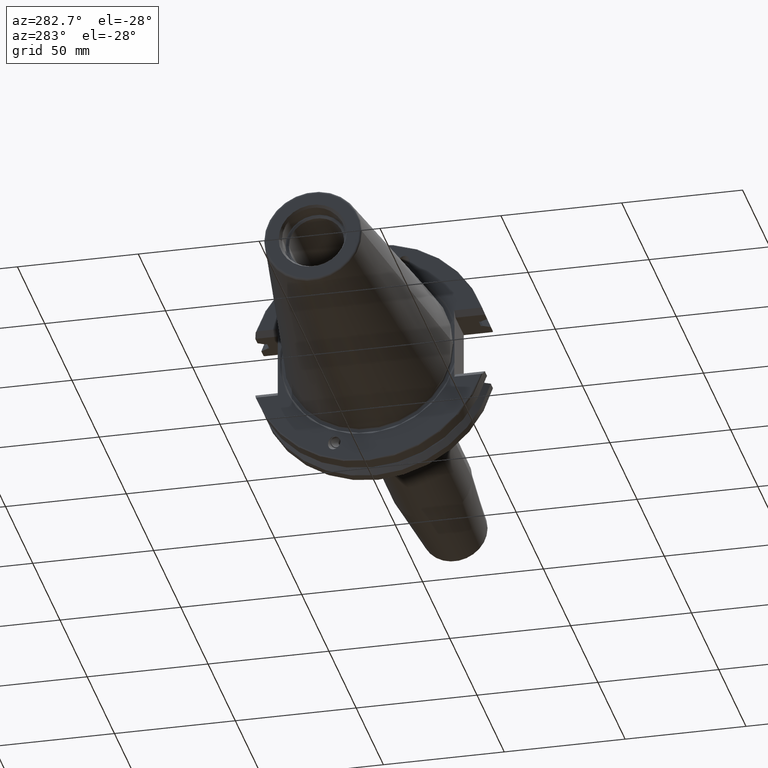
[diagram: clean part render]
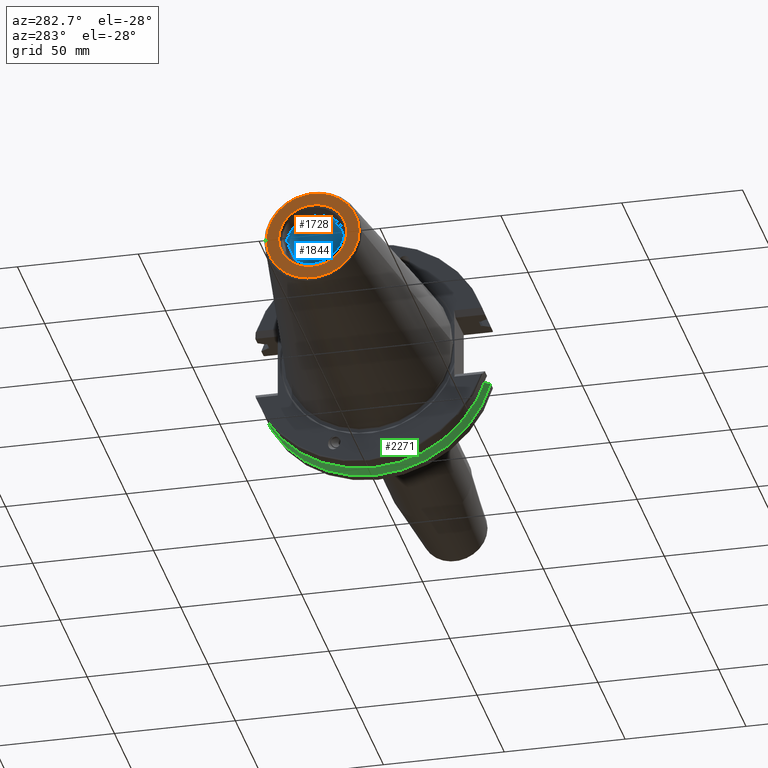
[diagram: same view with three faces highlighted in distinct colors, each labeled with its STEP entity id]
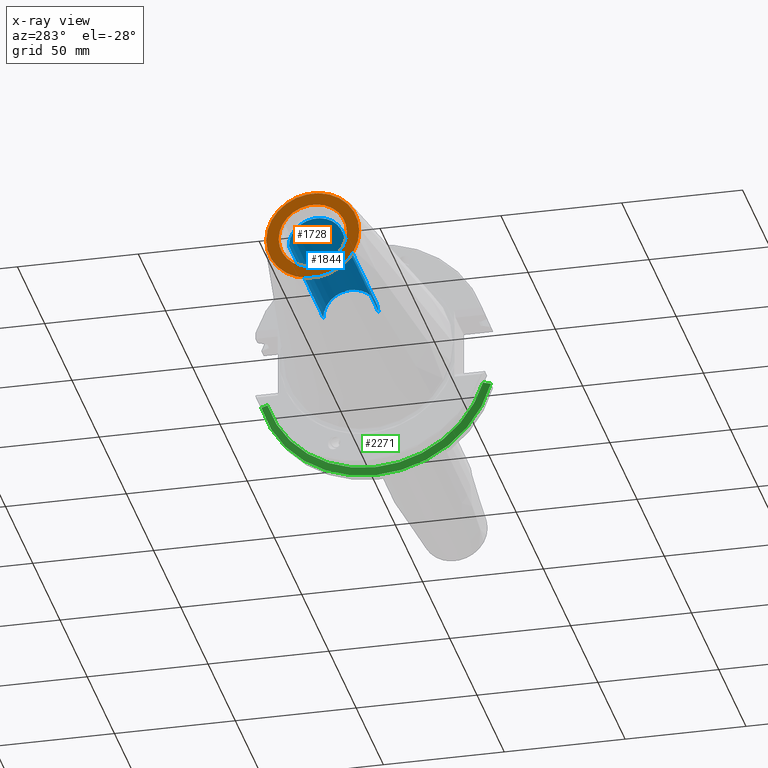
[diagram: x-ray of the same camera — body ghosted, the three highlighted faces saturated]
A machine part, auxiliary view with three faces highlighted in distinct colors.
The next image is the same camera in x-ray (body ghosted, the three faces saturated) — at least one of them is partly hidden behind the body in this view.
Their STEP definitions:

[orange] entity #1728 — the highlighted planar face has unit normal (1, 0, 0).
#17=CARTESIAN_POINT('',(-1.016E2,0.E0,0.E0));
#18=DIRECTION('',(1.E0,0.E0,0.E0));
#19=DIRECTION('',(0.E0,1.E0,0.E0));
#20=AXIS2_PLACEMENT_3D('',#17,#18,#19);
#22=CARTESIAN_POINT('',(-1.016E2,0.E0,-2.262045102705E-14));
#23=DIRECTION('',(1.E0,0.E0,0.E0));
#24=DIRECTION('',(0.E0,-1.E0,0.E0));
#25=AXIS2_PLACEMENT_3D('',#22,#23,#24);
#27=CARTESIAN_POINT('',(-1.016E2,0.E0,0.E0));
#28=DIRECTION('',(-1.E0,0.E0,0.E0));
#29=DIRECTION('',(0.E0,-1.E0,0.E0));
#30=AXIS2_PLACEMENT_3D('',#27,#28,#29);
#32=CARTESIAN_POINT('',(-1.016E2,0.E0,0.E0));
#33=DIRECTION('',(-1.E0,0.E0,0.E0));
#34=DIRECTION('',(0.E0,1.E0,0.E0));
#35=AXIS2_PLACEMENT_3D('',#32,#33,#34);
#1470=CARTESIAN_POINT('',(-1.016E2,1.41E1,0.E0));
#1471=CARTESIAN_POINT('',(-1.016E2,-1.41E1,0.E0));
#1472=VERTEX_POINT('',#1470);
#1473=VERTEX_POINT('',#1471);
#1552=CARTESIAN_POINT('',(-1.016E2,-1.924358988180E1,0.E0));
#1553=CARTESIAN_POINT('',(-1.016E2,1.924358988180E1,0.E0));
#1554=VERTEX_POINT('',#1552);
#1555=VERTEX_POINT('',#1553);
#1712=CARTESIAN_POINT('',(-1.016E2,0.E0,0.E0));
#1713=DIRECTION('',(1.E0,0.E0,0.E0));
#1714=DIRECTION('',(0.E0,-1.E0,0.E0));
#1715=AXIS2_PLACEMENT_3D('',#1712,#1713,#1714);
#1716=PLANE('',#1715);
#1717=ORIENTED_EDGE('',*,*,#1702,.F.);
#1719=ORIENTED_EDGE('',*,*,#1718,.F.);
#1720=EDGE_LOOP('',(#1717,#1719));
#1721=FACE_OUTER_BOUND('',#1720,.F.);
#1723=ORIENTED_EDGE('',*,*,#1722,.F.);
#1725=ORIENTED_EDGE('',*,*,#1724,.F.);
#1726=EDGE_LOOP('',(#1723,#1725));
#1727=FACE_BOUND('',#1726,.F.);
#1728=ADVANCED_FACE('',(#1721,#1727),#1716,.F.);
#21=CIRCLE('',#20,1.41E1);
#26=CIRCLE('',#25,1.41E1);
#31=CIRCLE('',#30,1.924358988180E1);
#36=CIRCLE('',#35,1.924358988180E1);
#1702=EDGE_CURVE('',#1554,#1555,#31,.T.);
#1718=EDGE_CURVE('',#1555,#1554,#36,.T.);
#1722=EDGE_CURVE('',#1472,#1473,#21,.T.);
#1724=EDGE_CURVE('',#1473,#1472,#26,.T.);

[blue] entity #1844 — the highlighted cylindrical surface (edge-blend (fillet) strip) has radius 11.4 mm, axis along (1, 0, 0).
#92=DIRECTION('',(1.E0,-5.922427148179E-11,3.601589017540E-12));
#93=VECTOR('',#92,6.314999999784E1);
#94=CARTESIAN_POINT('',(-9.474999999784E1,-1.139999999626E1,
-2.274389503525E-10));
#95=LINE('',#94,#93);
#96=CARTESIAN_POINT('',(-9.475E1,0.E0,0.E0));
#97=DIRECTION('',(-1.E0,0.E0,0.E0));
#98=DIRECTION('',(0.E0,-1.E0,0.E0));
#99=AXIS2_PLACEMENT_3D('',#96,#97,#98);
#101=DIRECTION('',(1.E0,5.922427148179E-11,-3.601602063247E-12));
#102=VECTOR('',#101,6.314999999784E1);
#103=CARTESIAN_POINT('',(-9.474999999784E1,1.139999999626E1,
2.274397741889E-10));
#104=LINE('',#103,#102);
#109=CARTESIAN_POINT('',(-3.16E1,0.E0,0.E0));
#110=DIRECTION('',(1.E0,0.E0,0.E0));
#111=DIRECTION('',(0.E0,1.E0,0.E0));
#112=AXIS2_PLACEMENT_3D('',#109,#110,#111);
#1458=CARTESIAN_POINT('',(-3.16E1,1.14E1,0.E0));
#1459=CARTESIAN_POINT('',(-3.16E1,-1.14E1,0.E0));
#1460=VERTEX_POINT('',#1458);
#1461=VERTEX_POINT('',#1459);
#1478=CARTESIAN_POINT('',(-9.475E1,1.14E1,0.E0));
#1479=CARTESIAN_POINT('',(-9.475E1,-1.14E1,0.E0));
#1480=VERTEX_POINT('',#1478);
#1481=VERTEX_POINT('',#1479);
#1831=CARTESIAN_POINT('',(-1.016E2,0.E0,0.E0));
#1832=DIRECTION('',(1.E0,0.E0,0.E0));
#1833=DIRECTION('',(0.E0,1.E0,0.E0));
#1834=AXIS2_PLACEMENT_3D('',#1831,#1832,#1833);
#1835=CYLINDRICAL_SURFACE('',#1834,1.14E1);
#1837=ORIENTED_EDGE('',*,*,#1836,.F.);
#1838=ORIENTED_EDGE('',*,*,#1826,.T.);
#1840=ORIENTED_EDGE('',*,*,#1839,.F.);
#1841=ORIENTED_EDGE('',*,*,#1822,.F.);
#1842=EDGE_LOOP('',(#1837,#1838,#1840,#1841));
#1843=FACE_OUTER_BOUND('',#1842,.F.);
#1844=ADVANCED_FACE('',(#1843),#1835,.F.);
#100=CIRCLE('',#99,1.14E1);
#113=CIRCLE('',#112,1.14E1);
#1822=EDGE_CURVE('',#1480,#1460,#104,.T.);
#1826=EDGE_CURVE('',#1481,#1461,#95,.T.);
#1836=EDGE_CURVE('',#1481,#1480,#100,.T.);
#1839=EDGE_CURVE('',#1460,#1461,#113,.T.);

[green] entity #2271 — the highlighted conical surface has half-angle 60 deg.
#489=CARTESIAN_POINT('',(1.466020903405E1,-4.747807553229E1,-1.295E1));
#490=CARTESIAN_POINT('',(1.447751436462E1,-4.715007932336E1,-1.295E1));
#491=CARTESIAN_POINT('',(1.411457580296E1,-4.649801614774E1,-1.295E1));
#492=CARTESIAN_POINT('',(1.357755298958E1,-4.553173653468E1,-1.295E1));
#493=CARTESIAN_POINT('',(1.322443161200E1,-4.489535206389E1,-1.295E1));
#494=CARTESIAN_POINT('',(1.30491E1,-4.457911479736E1,-1.295E1));
#496=CARTESIAN_POINT('',(1.466020903405E1,0.E0,0.E0));
#497=DIRECTION('',(1.E0,0.E0,0.E0));
#498=DIRECTION('',(0.E0,-9.647564243290E-1,-2.631445262891E-1));
#499=AXIS2_PLACEMENT_3D('',#496,#497,#498);
#501=CARTESIAN_POINT('',(1.30491E1,4.457911479736E1,-1.295E1));
#502=CARTESIAN_POINT('',(1.322440937039E1,4.489531194778E1,-1.295E1));
#503=CARTESIAN_POINT('',(1.357750102830E1,4.553164294587E1,-1.295E1));
#504=CARTESIAN_POINT('',(1.411452303105E1,4.649792128699E1,-1.295E1));
#505=CARTESIAN_POINT('',(1.447749172290E1,4.715003867413E1,-1.295E1));
#506=CARTESIAN_POINT('',(1.466020903405E1,4.747807553229E1,-1.295E1));
#508=CARTESIAN_POINT('',(1.30491E1,0.E0,0.E0));
#509=DIRECTION('',(-1.E0,0.E0,0.E0));
#510=DIRECTION('',(0.E0,9.603019387269E-1,-2.789626972864E-1));
#511=AXIS2_PLACEMENT_3D('',#508,#509,#510);
#1419=CARTESIAN_POINT('',(1.30491E1,4.457911479736E1,-1.295E1));
#1421=VERTEX_POINT('',#1419);
#1425=VERTEX_POINT('',#506);
#1442=CARTESIAN_POINT('',(1.30491E1,-4.457911479736E1,-1.295E1));
#1443=VERTEX_POINT('',#1442);
#1446=VERTEX_POINT('',#489);
#2258=CARTESIAN_POINT('',(1.385465451702E1,0.E0,0.E0));
#2259=DIRECTION('',(1.E0,0.E0,0.E0));
#2260=DIRECTION('',(0.E0,-1.E0,0.E0));
#2261=AXIS2_PLACEMENT_3D('',#2258,#2259,#2260);
#2262=CONICAL_SURFACE('',#2261,4.781723864825E1,6.E1);
#2263=ORIENTED_EDGE('',*,*,#2239,.F.);
#2264=ORIENTED_EDGE('',*,*,#2157,.T.);
#2266=ORIENTED_EDGE('',*,*,#2265,.F.);
#2268=ORIENTED_EDGE('',*,*,#2267,.T.);
#2269=EDGE_LOOP('',(#2263,#2264,#2266,#2268));
#2270=FACE_OUTER_BOUND('',#2269,.F.);
#2271=ADVANCED_FACE('',(#2270),#2262,.T.);
#495=B_SPLINE_CURVE_WITH_KNOTS('',3,(#489,#490,#491,#492,#493,#494),
.UNSPECIFIED.,.F.,.F.,(4,1,1,4),(0.E0,3.333333333333E-1,6.666666666667E-1,1.E0),
.UNSPECIFIED.);
#500=CIRCLE('',#499,4.92125E1);
#507=B_SPLINE_CURVE_WITH_KNOTS('',3,(#501,#502,#503,#504,#505,#506),
.UNSPECIFIED.,.F.,.F.,(4,1,1,4),(0.E0,3.333333333333E-1,6.666666666667E-1,1.E0),
.UNSPECIFIED.);
#512=CIRCLE('',#511,4.642197729649E1);
#2157=EDGE_CURVE('',#1446,#1425,#500,.T.);
#2239=EDGE_CURVE('',#1446,#1443,#495,.T.);
#2265=EDGE_CURVE('',#1421,#1425,#507,.T.);
#2267=EDGE_CURVE('',#1421,#1443,#512,.T.);